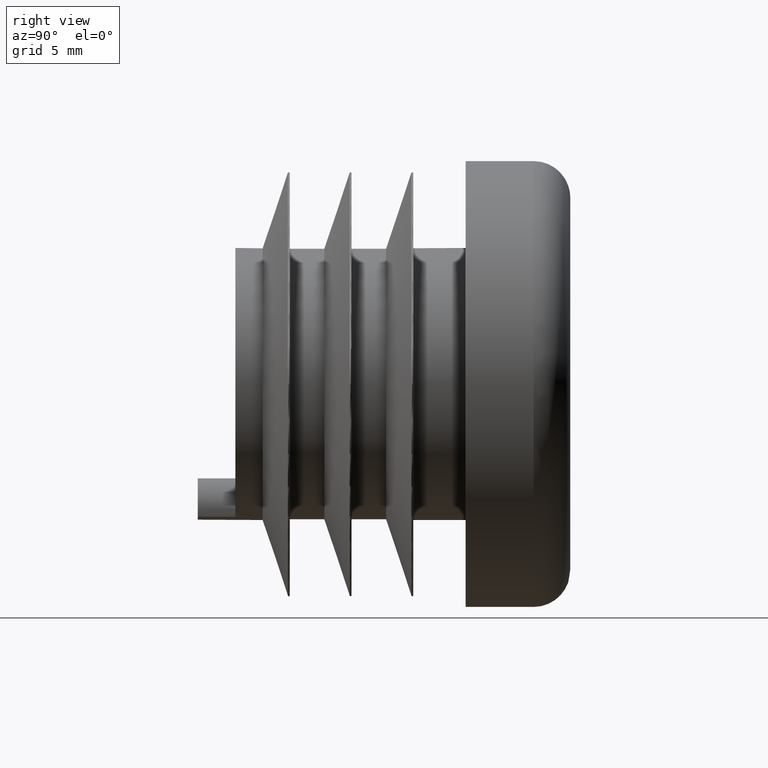
[diagram: clean part render]
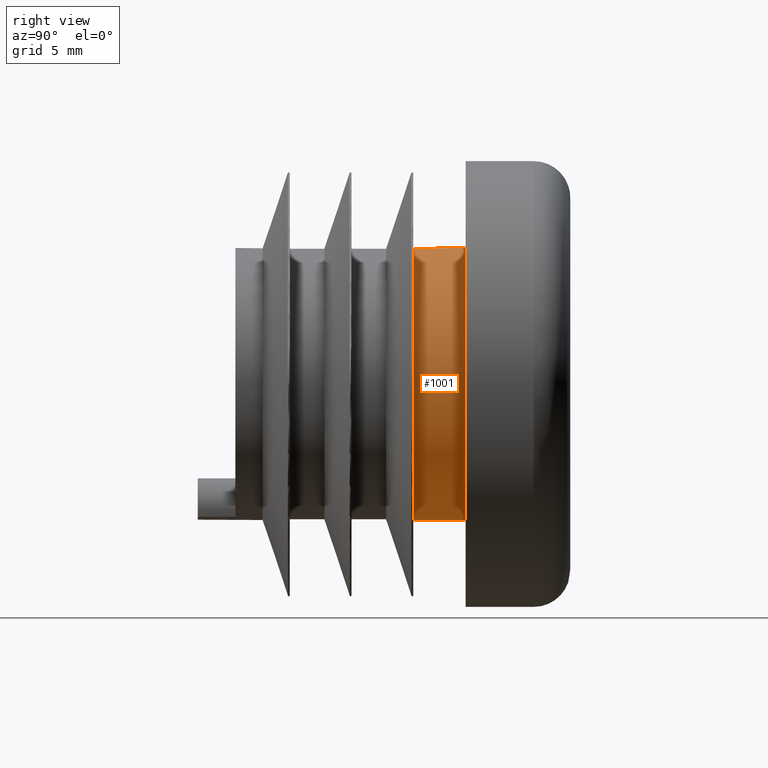
[diagram: same view with one face highlighted and labeled with its STEP entity id]
A machine part, right view. The second image highlights one B-rep face of the part: STEP entity #1001.
In plain terms, the highlighted cylindrical surface (bore or boss wall) has radius 6.5 mm, axis along (-0, -1, -0).
Its self-contained STEP definition (entity closure, byte-faithful):
#114 = EDGE_CURVE ( 'NONE', #1629, #1629, #9530, .T. ) ;
#212 = DIRECTION ( 'NONE',  ( -1.000000000000000000, -1.040834085586084414E-14, 0.000000000000000000 ) ) ;
#321 = VERTEX_POINT ( 'NONE', #3754 ) ;
#509 = FACE_OUTER_BOUND ( 'NONE', #1566, .T. ) ;
#945 = CARTESIAN_POINT ( 'NONE',  ( 0.000000000000000000, 8.500000000000113687, 0.000000000000000000 ) ) ;
#975 = DIRECTION ( 'NONE',  ( 1.047444401652940164E-14, -1.000000000000000000, -0.000000000000000000 ) ) ;
#993 = FACE_OUTER_BOUND ( 'NONE', #4751, .T. ) ;
#1001 = ADVANCED_FACE ( 'NONE', ( #509, #993 ), #2899, .T. ) ;
#1566 = EDGE_LOOP ( 'NONE', ( #2690 ) ) ;
#1629 = VERTEX_POINT ( 'NONE', #6061 ) ;
#1677 = CIRCLE ( 'NONE', #1910, 6.499999999999999112 ) ;
#1910 = AXIS2_PLACEMENT_3D ( 'NONE', #945, #975, #212 ) ;
#2690 = ORIENTED_EDGE ( 'NONE', *, *, #3931, .F. ) ;
#2720 = CARTESIAN_POINT ( 'NONE',  ( 0.000000000000000000, 11.00000000000000000, 0.000000000000000000 ) ) ;
#2899 = CYLINDRICAL_SURFACE ( 'NONE', #4764, 6.499999999999999112 ) ;
#3101 = DIRECTION ( 'NONE',  ( 0.000000000000000000, 0.000000000000000000, -1.000000000000000000 ) ) ;
#3754 = CARTESIAN_POINT ( 'NONE',  ( -6.499999999999999112, 8.500000000000046185, 0.000000000000000000 ) ) ;
#3931 = EDGE_CURVE ( 'NONE', #321, #321, #1677, .T. ) ;
#4751 = EDGE_LOOP ( 'NONE', ( #7819 ) ) ;
#4764 = AXIS2_PLACEMENT_3D ( 'NONE', #2720, #8997, #8313 ) ;
#5449 = CARTESIAN_POINT ( 'NONE',  ( 0.000000000000000000, 11.00000000000000178, 0.000000000000000000 ) ) ;
#6061 = CARTESIAN_POINT ( 'NONE',  ( 0.000000000000000000, 11.00000000000000178, -6.499999999999997335 ) ) ;
#7687 = DIRECTION ( 'NONE',  ( -0.000000000000000000, -1.000000000000000000, -0.000000000000000000 ) ) ;
#7819 = ORIENTED_EDGE ( 'NONE', *, *, #114, .T. ) ;
#8313 = DIRECTION ( 'NONE',  ( 0.000000000000000000, 0.000000000000000000, -1.000000000000000000 ) ) ;
#8917 = AXIS2_PLACEMENT_3D ( 'NONE', #5449, #7687, #3101 ) ;
#8997 = DIRECTION ( 'NONE',  ( -0.000000000000000000, -1.000000000000000000, -0.000000000000000000 ) ) ;
#9530 = CIRCLE ( 'NONE', #8917, 6.499999999999997335 ) ;